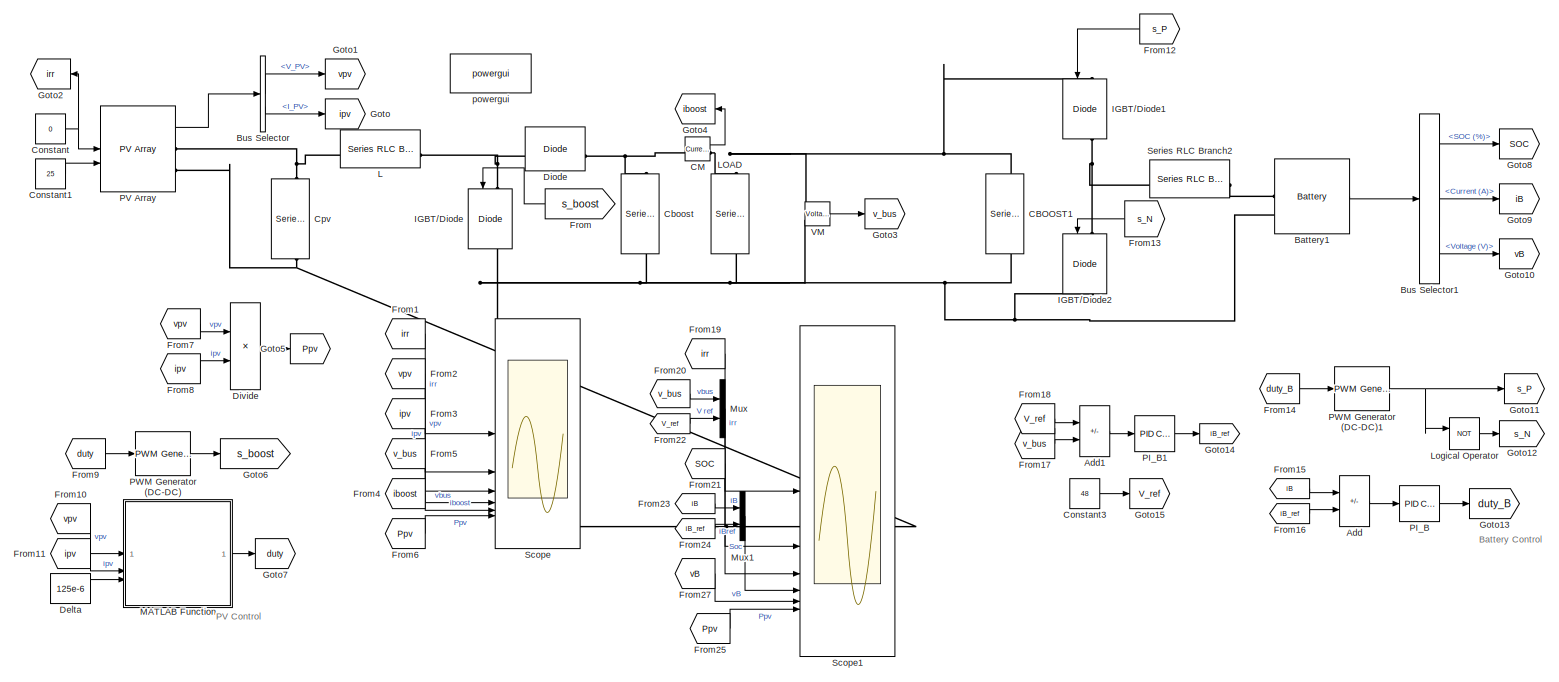
[diagram: root canvas - part 1/1, most of the canvas]
MODEL slx_eb0176589ef1
KIND model
CONFIG AbsTol = auto
CONFIG EnableMultiTasking = off
CONFIG FixedStep = auto
CONFIG MaxStep = auto
CONFIG MinStep = auto
CONFIG RelTol = 1e-3
CONFIG SampleTimeConstraint = Unconstrained
CONFIG SolverName = FixedStepDiscrete
CONFIG StartTime = 0.0
CONFIG StopTime = inf
BLOCK [Sum] Add
  IconShape = rectangular
  Inputs = +-
BLOCK [Sum] Add1
  IconShape = rectangular
  Inputs = +-
BLOCK [Reference] Battery1  REF=spsBatteryLib/Battery
  LibrarySourceBlock = sps_lib/Sources/Battery
  NameLocation = top
  SourceBlock = spsBatteryLib/Battery
  SourceType = Battery
BLOCK [BusSelector] Bus Selector
  OutputSignals = V_PV,I_PV
BLOCK [BusSelector] Bus Selector1
  OutputSignals = SOC (%),Current (A),Voltage (V)
BLOCK [Reference] CBOOST1  REF=spsSeriesRLCBranchLib/Series RLC Branch
  LibrarySourceBlock = sps_lib/Passives/Series RLC Branch
  NameLocation = right
  SourceBlock = spsSeriesRLCBranchLib/Series RLC Branch
  SourceType = Series RLC Branch
BLOCK [Reference] CM  REF=spsCurrentMeasurementLib/Current Measurement
  LibrarySourceBlock = sps_lib/Sensors and Measurements/Current Measurement
  SourceBlock = spsCurrentMeasurementLib/Current Measurement
  SourceType = Current Measurement
  UserDataPersistent = on
BLOCK [Reference] Cboost  REF=spsSeriesRLCBranchLib/Series RLC Branch
  LibrarySourceBlock = sps_lib/Passives/Series RLC Branch
  NameLocation = right
  SourceBlock = spsSeriesRLCBranchLib/Series RLC Branch
  SourceType = Series RLC Branch
BLOCK [Constant] Constant
  Value = 0
BLOCK [Constant] Constant1
  Value = 25
BLOCK [Constant] Constant3
  Value = 48
BLOCK [Reference] Cpv  REF=spsSeriesRLCBranchLib/Series RLC Branch
  LibrarySourceBlock = sps_lib/Passives/Series RLC Branch
  NameLocation = right
  SourceBlock = spsSeriesRLCBranchLib/Series RLC Branch
  SourceType = Series RLC Branch
BLOCK [Constant] Delta
  Value = 125e-6
BLOCK [Reference] Diode  REF=spsDiodeLib/Diode
  LibrarySourceBlock = sps_lib/Power Electronics/Diode
  SourceBlock = spsDiodeLib/Diode
  SourceType = Diode
BLOCK [Product] Divide
  Inputs = **
BLOCK [From] From
  GotoTag = s_boost
  NameLocation = top
  TagVisibility = global
BLOCK [From] From1
  GotoTag = irr
  NameLocation = top
  TagVisibility = global
BLOCK [From] From10
  GotoTag = vpv
  TagVisibility = global
BLOCK [From] From11
  GotoTag = ipv
  TagVisibility = global
BLOCK [From] From12
  GotoTag = s_P
  NameLocation = top
BLOCK [From] From13
  GotoTag = s_N
  NameLocation = top
BLOCK [From] From14
  GotoTag = duty_B
BLOCK [From] From15
  GotoTag = iB
  TagVisibility = global
BLOCK [From] From16
  GotoTag = iB_ref
BLOCK [From] From17
  GotoTag = v_bus
  TagVisibility = global
BLOCK [From] From18
  GotoTag = V_ref
BLOCK [From] From19
  GotoTag = irr
  NameLocation = top
  TagVisibility = global
BLOCK [From] From2
  GotoTag = vpv
  TagVisibility = global
BLOCK [From] From20
  GotoTag = v_bus
  TagVisibility = global
BLOCK [From] From21
  GotoTag = SOC
  TagVisibility = global
BLOCK [From] From22
  GotoTag = V_ref
BLOCK [From] From23
  GotoTag = iB
  TagVisibility = global
BLOCK [From] From24
  GotoTag = iB_ref
BLOCK [From] From25
  GotoTag = Ppv
  NameLocation = top
BLOCK [From] From27
  GotoTag = vB
  TagVisibility = global
BLOCK [From] From3
  GotoTag = ipv
  TagVisibility = global
BLOCK [From] From4
  GotoTag = iboost
  NameLocation = top
  TagVisibility = global
BLOCK [From] From5
  GotoTag = v_bus
  TagVisibility = global
BLOCK [From] From6
  GotoTag = Ppv
  NameLocation = top
BLOCK [From] From7
  GotoTag = vpv
  TagVisibility = global
BLOCK [From] From8
  GotoTag = ipv
  TagVisibility = global
BLOCK [From] From9
  GotoTag = duty
  TagVisibility = global
BLOCK [Goto] Goto
  GotoTag = ipv
  TagVisibility = global
BLOCK [Goto] Goto1
  GotoTag = vpv
  TagVisibility = global
BLOCK [Goto] Goto10
  GotoTag = vB
  TagVisibility = global
BLOCK [Goto] Goto11
  GotoTag = s_P
  NameLocation = top
BLOCK [Goto] Goto12
  GotoTag = s_N
  NameLocation = top
BLOCK [Goto] Goto13
  GotoTag = duty_B
BLOCK [Goto] Goto14
  GotoTag = iB_ref
BLOCK [Goto] Goto15
  GotoTag = V_ref
BLOCK [Goto] Goto2
  GotoTag = irr
  NameLocation = top
  TagVisibility = global
BLOCK [Goto] Goto3
  GotoTag = v_bus
  TagVisibility = global
BLOCK [Goto] Goto4
  GotoTag = iboost
  NameLocation = top
  TagVisibility = global
BLOCK [Goto] Goto5
  GotoTag = Ppv
BLOCK [Goto] Goto6
  GotoTag = s_boost
  NameLocation = top
  TagVisibility = global
BLOCK [Goto] Goto7
  GotoTag = duty
  TagVisibility = global
BLOCK [Goto] Goto8
  GotoTag = SOC
  TagVisibility = global
BLOCK [Goto] Goto9
  GotoTag = iB
  TagVisibility = global
BLOCK [Reference] IGBT//Diode  REF=spsIGBTDiodeLib/IGBT//Diode
  NameLocation = left
  SourceBlock = spsIGBTDiodeLib/IGBT//Diode
  SourceType = IGBT/Diode
BLOCK [Reference] IGBT//Diode1  REF=spsIGBTDiodeLib/IGBT//Diode
  NameLocation = left
  SourceBlock = spsIGBTDiodeLib/IGBT//Diode
  SourceType = IGBT/Diode
BLOCK [Reference] IGBT//Diode2  REF=spsIGBTDiodeLib/IGBT//Diode
  NameLocation = left
  SourceBlock = spsIGBTDiodeLib/IGBT//Diode
  SourceType = IGBT/Diode
BLOCK [Reference] L  REF=spsSeriesRLCBranchLib/Series RLC Branch
  LibrarySourceBlock = sps_lib/Passives/Series RLC Branch
  SourceBlock = spsSeriesRLCBranchLib/Series RLC Branch
  SourceType = Series RLC Branch
BLOCK [Reference] LOAD  REF=spsSeriesRLCBranchLib/Series RLC Branch
  LibrarySourceBlock = sps_lib/Passives/Series RLC Branch
  NameLocation = right
  SourceBlock = spsSeriesRLCBranchLib/Series RLC Branch
  SourceType = Series RLC Branch
BLOCK [Logic] Logical Operator
  AllPortsSameDT = off
  Operator = NOT
  OutDataTypeStr = boolean
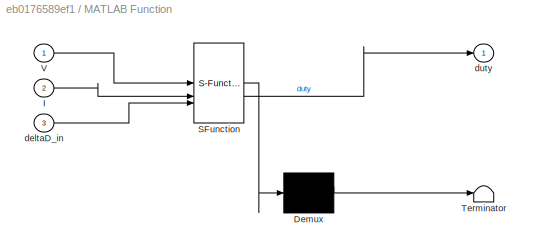
BLOCK [SubSystem] MATLAB Function
  ErrorFcn = Stateflow.Translate.translate
  PermitHierarchicalResolution = ExplicitOnly
  SFBlockType = MATLAB Function
  TreatAsAtomicUnit = on
BLOCK [Demux] MATLAB Function/ Demux 
  Outputs = 1
BLOCK [S-Function] MATLAB Function/ SFunction 
  EnableBusSupport = on
  FunctionName = sf_sfun
  PortCounts = [3 2]
  SFcnIsStateOwnerBlock = off
  SFunctionDeploymentMode = off
  Tag = Stateflow S-Function 2
BLOCK [Terminator] MATLAB Function/ Terminator 
BLOCK [Inport] MATLAB Function/I
  Port = 2
BLOCK [Inport] MATLAB Function/V
BLOCK [Inport] MATLAB Function/deltaD_in
  Port = 3
BLOCK [Outport] MATLAB Function/duty
BLOCK [Mux] Mux
  DisplayOption = bar
  Inputs = 2
BLOCK [Mux] Mux1
  DisplayOption = bar
  Inputs = 2
BLOCK [Reference] PI_B  REF=slpidlib/PID Controller
  LibrarySourceBlock = simulink/Discrete/Discrete PID Controller
  SourceBlock = slpidlib/PID Controller
  SourceType = PID 1dof
BLOCK [Reference] PI_B1  REF=slpidlib/PID Controller
  LibrarySourceBlock = simulink/Discrete/Discrete PID Controller
  SourceBlock = slpidlib/PID Controller
  SourceType = PID 1dof
BLOCK [Reference] PV Array  REF=spsPVArrayLib/PV Array
  LibrarySourceBlock = sps_lib/Sources/PV Array
  SourceBlock = spsPVArrayLib/PV Array
  SourceType = PV array
BLOCK [Reference] PWM Generator (DC-DC)  REF=spsPWMGeneratorDCDCLib/PWM Generator
(DC-DC)
  LibrarySourceBlock = sps_lib/Power Electronics/Power Electronics Control/PWM Generator\n(DC-DC)
  SourceBlock = spsPWMGeneratorDCDCLib/PWM Generator\n(DC-DC)
  SourceType = PWM Generator (DC-DC)
BLOCK [Reference] PWM Generator (DC-DC)1  REF=spsPWMGeneratorDCDCLib/PWM Generator
(DC-DC)
  LibrarySourceBlock = sps_lib/Power Electronics/Power Electronics Control/PWM Generator\n(DC-DC)
  NameLocation = right
  SourceBlock = spsPWMGeneratorDCDCLib/PWM Generator\n(DC-DC)
  SourceType = PWM Generator (DC-DC)
BLOCK [Scope] Scope
  Floating = off
  NumInputPorts = 6
  ScopeSpecificationString = Simulink.scopes.TimeScopeBlockCfg('CurrentConfiguration', extmgr.ConfigurationSet(extmgr.Configuration('Core','General UI',true,'FigureColor',[1 1 1]),extmgr.Configuration('Core','Source UI',true),extmgr.Configuration('Sources','WiredSimulink',true),extmgr.Configuration('Visuals','Time Domain',true,'SerializedDisplays',{struct('MinYLimReal','-75.00000','MaxYLimReal','675.00000','YLabelReal','','Mi...<+10349ch>
BLOCK [Scope] Scope1
  Floating = off
  NumInputPorts = 6
  ScopeSpecificationString = Simulink.scopes.TimeScopeBlockCfg('CurrentConfiguration', extmgr.ConfigurationSet(extmgr.Configuration('Core','General UI',true,'FigureColor',[1 1 1]),extmgr.Configuration('Core','Source UI',true),extmgr.Configuration('Sources','WiredSimulink',true,'DataLoggingVariableName','ScopeData1'),extmgr.Configuration('Visuals','Time Domain',true,'SerializedDisplays',{struct('MinYLimReal','-75.00000','MaxYL...<+10373ch>
BLOCK [Reference] Series RLC Branch2  REF=spsSeriesRLCBranchLib/Series RLC Branch
  LibrarySourceBlock = sps_lib/Passives/Series RLC Branch
  SourceBlock = spsSeriesRLCBranchLib/Series RLC Branch
  SourceType = Series RLC Branch
BLOCK [Reference] VM  REF=spsVoltageMeasurementLib/Voltage Measurement
  LibrarySourceBlock = sps_lib/Sensors and Measurements/Voltage Measurement
  SourceBlock = spsVoltageMeasurementLib/Voltage Measurement
  SourceType = Voltage Measurement
  UserDataPersistent = on
BLOCK [Reference] powergui  REF=sps_lib/powergui
  LibrarySourceBlock = sps_lib/powergui
  Priority = 1
  SourceBlock = sps_lib/powergui
  SourceType = PSB option menu block
ANNOTATION (root): Battery Control
ANNOTATION (root): PV Control
LINE Add1:1 -> PI_B1:1
LINE Add:1 -> PI_B:1
LINE Battery1:1 -> Bus Selector1:1
LINE Bus Selector1:1 -> Goto8:1
LINE Bus Selector1:2 -> Goto9:1
LINE Bus Selector1:3 -> Goto10:1
LINE Bus Selector:1 -> Goto1:1
LINE Bus Selector:2 -> Goto:1
LINE CM:1 -> Goto4:1
LINE Constant1:1 -> PV Array:2
LINE Constant3:1 -> Goto15:1
NET Constant:1 -> Goto2:1, PV Array:1
LINE Delta:1 -> MATLAB Function:3
LINE Divide:1 -> Goto5:1
LINE From10:1 -> MATLAB Function:1
LINE From11:1 -> MATLAB Function:2
LINE From12:1 -> IGBT//Diode1:1
LINE From13:1 -> IGBT//Diode2:1
LINE From14:1 -> PWM Generator (DC-DC)1:1
LINE From15:1 -> Add:1
LINE From16:1 -> Add:2
LINE From17:1 -> Add1:2
LINE From18:1 -> Add1:1
LINE From19:1 -> Scope1:1
LINE From1:1 -> Scope:1
LINE From20:1 -> Mux:1
LINE From21:1 -> Scope1:3
LINE From22:1 -> Mux:2
LINE From23:1 -> Mux1:1
LINE From24:1 -> Mux1:2
LINE From25:1 -> Scope1:6
LINE From27:1 -> Scope1:5
LINE From2:1 -> Scope:2
LINE From3:1 -> Scope:3
LINE From4:1 -> Scope:5
LINE From5:1 -> Scope:4
LINE From6:1 -> Scope:6
LINE From7:1 -> Divide:1
LINE From8:1 -> Divide:2
LINE From9:1 -> PWM Generator (DC-DC):1
LINE From:1 -> IGBT//Diode:1
LINE Logical Operator:1 -> Goto12:1
LINE MATLAB Function:1 -> Goto7:1
LINE Mux1:1 -> Scope1:4
LINE Mux:1 -> Scope1:2
LINE PI_B1:1 -> Goto14:1
LINE PI_B:1 -> Goto13:1
LINE PV Array:1 -> Bus Selector:1
NET PWM Generator (DC-DC)1:1 -> Goto11:1, Logical Operator:1
LINE PWM Generator (DC-DC):1 -> Goto6:1
LINE VM:1 -> Goto3:1
PLINE Battery1:LConn1 -- Series RLC Branch2:RConn1
PNET net1: Battery1:LConn2 -- CBOOST1:LConn1 -- Cboost:LConn1 -- Cpv:LConn1 -- IGBT//Diode2:RConn1 -- IGBT//Diode:RConn1 -- LOAD:LConn1 -- PV Array:RConn2 -- VM:LConn2
PNET net2: CBOOST1:RConn1 -- CM:RConn1 -- IGBT//Diode1:LConn1 -- LOAD:RConn1 -- VM:LConn1
PNET net3: CM:LConn1 -- Cboost:RConn1 -- Diode:RConn1
PNET net4: Cpv:RConn1 -- L:LConn1 -- PV Array:RConn1
PNET net5: Diode:LConn1 -- IGBT//Diode:LConn1 -- L:RConn1
PNET net6: IGBT//Diode1:RConn1 -- IGBT//Diode2:LConn1 -- Series RLC Branch2:LConn1
note: NET lines group one-source signal fan-out (src -> all destinations, sorted); 1:1 wires keep LINE; PNET lines group multi-terminal physical nets as a canonical sorted terminal list (undirected conserving connections); 2-terminal nets keep the pairwise PLINE form
CHART MATLAB Function states=1 transitions=1
  STATE_LABEL 'eML_blk_kernel()'
  STATE_LABEL 'SCRIPT:\nfunction duty = MPPT_control(V, I, deltaD_in)\n    % Initialize parameters\n    duty_init = 0.05;\n    duty_min = 0;\n    duty_max = 0.75;\n    \n    % Persistent variables to maintain state between function calls\n    persistent Vold Pold duty_old;\n    \n    % Initialize persistent variables if empty\n    if isempty(Vold)\n        Vold = 0;\n        Pold = 0;\n        duty_old = duty_init;\n    end\n  ...<+827ch>'
CHART  states=0 transitions=0
